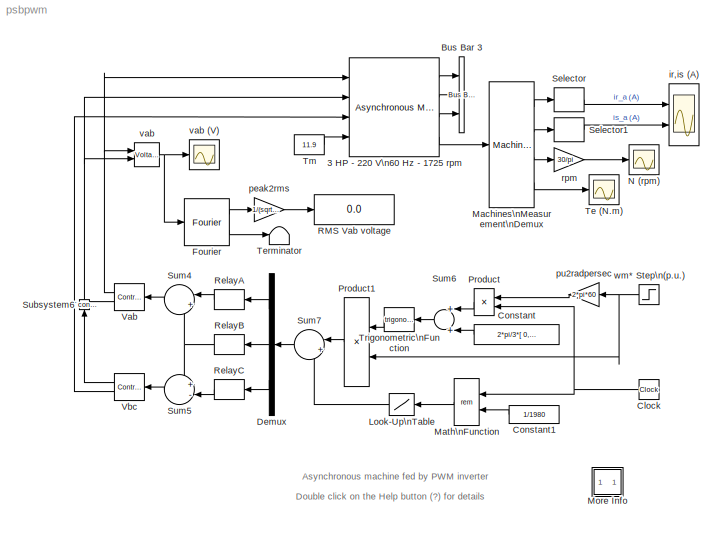
MODEL psbpwm
KIND model
CONFIG InitFcn = powericon('psbinitsys',bdroot);
BLOCK [Reference] 3 HP - 220 V\n60 Hz - 1725 rpm  REF=powerlib2/Machines/Asynchronous Machine\nSI Units
  LoadFlowParameters = 0
  PSBOutputType = 1110
  Ports = [4, 4]
  SourceBlock = powerlib2/Machines/Asynchronous Machine\nSI Units
  SourceType = Asynchronous Machine
  Tag = PoWeRsYsTeMbLoCk
  ctrl = Stationary
  iounits = 1
  rotType = Wound
  x1 = [ 3*746, 220, 60 ]
  x2 = [ 0.435  2*2.0e-3 ]
  x3 = [ 0.816  2.0e-3 ]
  x4 = 69.31e-3
  x5 = [ 0.089  0  2 ]
  x6 = [ 1,0   0,0,0   0,0,0 ]
BLOCK [Reference] Bus Bar 3  REF=powerlib2/Connectors/Bus Bar (thin vert)
  PSBOutputType = 111111111111111111111111111111111111111111111111111111111111111111111111111111111111
  Ports = [3]
  SourceBlock = powerlib2/Connectors/Bus Bar (thin vert)
  SourceType = Bus Bar
  input = 3
  output = 0
BLOCK [Clock] Clock
  Decimation = 10
BLOCK [Constant] Constant
  Value = 2*pi/3*[ 0,-1,1 ]
BLOCK [Constant] Constant1
  Value = 1/1980
BLOCK [Demux] Demux
  Outputs = 3
  Ports = [1, 3]
BLOCK [Reference] Fourier  REF=powerlib_extras/Measurements/Fourier
  Ports = [1, 2]
  SourceBlock = powerlib_extras/Measurements/Fourier
  SourceType = Fourier analyser
  f1 = 60
  n = 1
BLOCK [Lookup] Look-Up\nTable
  DialogController = Simulink.DDGSource
  InputValues = [0 0.25  0.75  1] / 1980
  OutputValues = [0  1  -1  0]
BLOCK [Reference] Machines\nMeasurement\nDemux  REF=powerlib2/Machines/Machines\nMeasurement\nDemux
  Ports = [1, 4]
  SourceBlock = powerlib2/Machines/Machines\nMeasurement\nDemux
  SourceType = Machine measurements
  asm1 = on
  asm10 = on
  asm11 = off
  asm2 = off
  asm3 = off
  asm4 = off
  asm5 = on
  asm6 = off
  asm7 = off
  asm8 = off
  asm9 = on
  lastType = 3
  machType = Asynchronous
  pmsm1 = on
  pmsm2 = on
  pmsm3 = on
  pmsm4 = on
  pmsm5 = on
  pmsm6 = on
  sm1 = on
  sm10 = on
  sm11 = on
  sm115 = off
  sm12 = off
  sm13 = off
  sm14 = off
  sm2 = on
  sm3 = on
  sm4 = on
  sm5 = on
  sm6 = on
  sm7 = on
  sm8 = on
  sm9 = on
  ssm1 = on
  ssm2 = on
  ssm3 = on
  ssm4 = on
  ssm5 = on
  ssm6 = on
BLOCK [Math] Math\nFunction
  Operator = rem
  Ports = [2, 1]
BLOCK [SubSystem] More Info
  MaskDisplay = disp('?')
  MaskIconFrame = on
  MaskIconOpaque = on
  MaskIconRotate = none
  MaskIconUnits = autoscale
  MinAlgLoopOccurrences = off
  Ports = []
  RTWSystemCode = Auto
  TreatAsAtomicUnit = off
BLOCK [Scope] N (rpm)
  DataFormat = Structure
  LimitDataPoints = off
  NumInputPorts = 1
  Ports = [1]
  TimeRange = 1
  YMax = 1800
  YMin = -200
BLOCK [Product] Product
  Ports = [2, 1]
  RndMeth = Floor
BLOCK [Product] Product1
  Ports = [2, 1]
  RndMeth = Floor
BLOCK [Display] RMS Vab voltage
  Decimation = 100
  Ports = [1]
BLOCK [Relay] RelayA
  OffOutputValue = -220*sqrt(2/3)
  OffSwitchValue = 0
  OnOutputValue = 220*sqrt(2/3)
  OnSwitchValue = 0
BLOCK [Relay] RelayB
  OffOutputValue = -220*sqrt(2/3)
  OffSwitchValue = 0
  OnOutputValue = 220*sqrt(2/3)
  OnSwitchValue = 0
BLOCK [Relay] RelayC
  OffOutputValue = -220*sqrt(2/3)
  OffSwitchValue = 0
  OnOutputValue = 220*sqrt(2/3)
  OnSwitchValue = 0
BLOCK [Selector] Selector
  InputPortWidth = 3
  Ports = [1, 1]
BLOCK [Selector] Selector1
  InputPortWidth = 3
  Ports = [1, 1]
BLOCK [Reference] Subsystem6  REF=powerlib2/Connectors/T connector
  PSBOutputType = 1
  Ports = [1, 1, 1]
  SourceBlock = powerlib2/Connectors/T connector
  SourceType = Bus Bar
  Tag = PoWeRsYsTeMbLoCk
BLOCK [Sum] Sum4
  IconShape = round
  Inputs = |+-
  Ports = [2, 1]
BLOCK [Sum] Sum5
  IconShape = round
  Inputs = +-|
  Ports = [2, 1]
BLOCK [Sum] Sum6
  Ports = [2, 1]
BLOCK [Sum] Sum7
  IconShape = round
  Inputs = |+-
  Ports = [2, 1]
BLOCK [Scope] Te (N.m)
  DataFormat = Structure
  LimitDataPoints = off
  NumInputPorts = 1
  Ports = [1]
  YMax = 100
  YMin = -30
BLOCK [Terminator] Terminator
BLOCK [Constant] Tm
  Value = 11.9
BLOCK [Trigonometry] Trigonometric\nFunction
  Ports = [1, 1]
BLOCK [Reference] Vab  REF=powerlib2/Electrical\nSources/Controlled Voltage Source
  PSBOutputType = 11
  Ports = [1, 2]
  SourceBlock = powerlib2/Electrical\nSources/Controlled Voltage Source
  SourceType = Controlled Voltage Source
  Tag = PoWeRsYsTeMbLoCk
  ifreq = 0
  initsrc = on
  iph = 0
  iv = 0
  mesure = None
  srctyp = AC
BLOCK [Reference] Vbc  REF=powerlib2/Electrical\nSources/Controlled Voltage Source
  PSBOutputType = 11
  Ports = [1, 2]
  SourceBlock = powerlib2/Electrical\nSources/Controlled Voltage Source
  SourceType = Controlled Voltage Source
  Tag = PoWeRsYsTeMbLoCk
  ifreq = 0
  initsrc = on
  iph = 0
  iv = 0
  mesure = None
  srctyp = AC
BLOCK [Scope] ir,is (A)
  DataFormat = Structure
  LimitDataPoints = off
  NumInputPorts = 2
  Ports = [2]
  YMax = 90~90
  YMin = -90~-90
BLOCK [Gain] peak2rms
  Gain = 1/(sqrt(2))
BLOCK [Gain] pu2radpersec
  Gain = 2*pi*60
BLOCK [Gain] rpm
  Gain = 30/pi
BLOCK [Reference] vab  REF=powerlib2/Measurements/Voltage Measurement
  OutputType = Magnitude
  PSBOutputType = 0
  PSBequivalent = 0
  PhasorSimulation = off
  Ports = [2, 1]
  SourceBlock = powerlib2/Measurements/Voltage Measurement
  SourceType = Voltage Measurement
  Tag = PoWeRsYsTeMmEaSuReMeNt
BLOCK [Scope] vab (V)
  DataFormat = Structure
  LimitDataPoints = off
  NumInputPorts = 1
  Ports = [1]
  TimeRange = 0.1
  YMax = 400
  YMin = -400
BLOCK [Step] wm* Step\n(p.u.)
  SampleTime = 0
  Time = 0
ANNOTATION (root): Asynchronous machine fed by PWM inverter
ANNOTATION (root): Double click on the Help button (?) for details
ANNOTATION More Info: A three-phase motor rated 3 HP, 220 V, 1725 rpm is fed by a sinusoidal PWM inverter. The base frequency\nof the sinusoidal reference wave is 60 Hz while the triangular carrier wave's frequency is set to 1980 Hz. \nThe PWM inverter is built entirely with standard Simulink blocks. Its output goes through Controlled Voltage \nSource blocks before being applied to the Asynchronous Machine block's stat...<+442ch>
ANNOTATION More Info: Circuit Description
ANNOTATION More Info: Demonstration
ANNOTATION More Info: Louis-A. Dessaint and R. Champagne (Ecole de Technologie Superieure, Montreal)
ANNOTATION More Info: Take a look at the simulation parameters. The Maximum time step has been limited to 10 microseconds.\nThis is required due to the relatively high switching frequency (1980 Hz) of the inverter. \n\nObserve that the rotor and stator currents are quite \"noisy\", despite the use of a smoothing reactor. The noise \nintroduced by the PWM inverter is also observed in the electromagnetic torque waveform ...<+419ch>
ANNOTATION More Info: This demonstration illustrates use of the asynchronous machine\nin an open-loop speed control on a 3 HP 220 V industrial motor
LINE 3 HP - 220 V\n60 Hz - 1725 rpm:1 -> Bus Bar 3:1
LINE 3 HP - 220 V\n60 Hz - 1725 rpm:2 -> Bus Bar 3:2
LINE 3 HP - 220 V\n60 Hz - 1725 rpm:3 -> Bus Bar 3:3
LINE 3 HP - 220 V\n60 Hz - 1725 rpm:4 -> Machines\nMeasurement\nDemux:1
NET Clock:1 -> Math\nFunction:1, Product:2
LINE Constant1:1 -> Math\nFunction:2
LINE Constant:1 -> Sum6:2
LINE Demux:1 -> RelayA:1
LINE Demux:2 -> RelayB:1
LINE Demux:3 -> RelayC:1
LINE Fourier:1 -> peak2rms:1
LINE Fourier:2 -> Terminator:1
LINE Look-Up\nTable:1 -> Sum7:2
LINE Machines\nMeasurement\nDemux:1 -> Selector:1
LINE Machines\nMeasurement\nDemux:2 -> Selector1:1
LINE Machines\nMeasurement\nDemux:3 -> rpm:1
LINE Machines\nMeasurement\nDemux:4 -> Te (N.m):1
LINE Math\nFunction:1 -> Look-Up\nTable:1
LINE Product1:1 -> Sum7:1
LINE Product:1 -> Sum6:1
LINE RelayA:1 -> Sum4:1
NET RelayB:1 -> Sum4:2, Sum5:1
LINE RelayC:1 -> Sum5:2
LINE Selector1:1 -> ir,is (A):2
LINE Selector:1 -> ir,is (A):1
NET Subsystem6:1 -> 3 HP - 220 V\n60 Hz - 1725 rpm:2, vab:2
LINE Sum4:1 -> Vab:1
LINE Sum5:1 -> Vbc:1
LINE Sum6:1 -> Trigonometric\nFunction:1
LINE Sum7:1 -> Demux:1
LINE Tm:1 -> 3 HP - 220 V\n60 Hz - 1725 rpm:4
LINE Trigonometric\nFunction:1 -> Product1:1
NET Vab:1 -> 3 HP - 220 V\n60 Hz - 1725 rpm:1, vab:1
LINE Vab:2 -> Subsystem6:enable
LINE Vbc:1 -> Subsystem6:1
LINE Vbc:2 -> 3 HP - 220 V\n60 Hz - 1725 rpm:3
LINE peak2rms:1 -> RMS Vab voltage:1
LINE pu2radpersec:1 -> Product:1
LINE rpm:1 -> N (rpm):1
NET vab:1 -> Fourier:1, vab (V):1
NET wm* Step\n(p.u.):1 -> Product1:2, pu2radpersec:1
note: NET lines group one-source signal fan-out (src -> all destinations, sorted); 1:1 wires keep LINE
